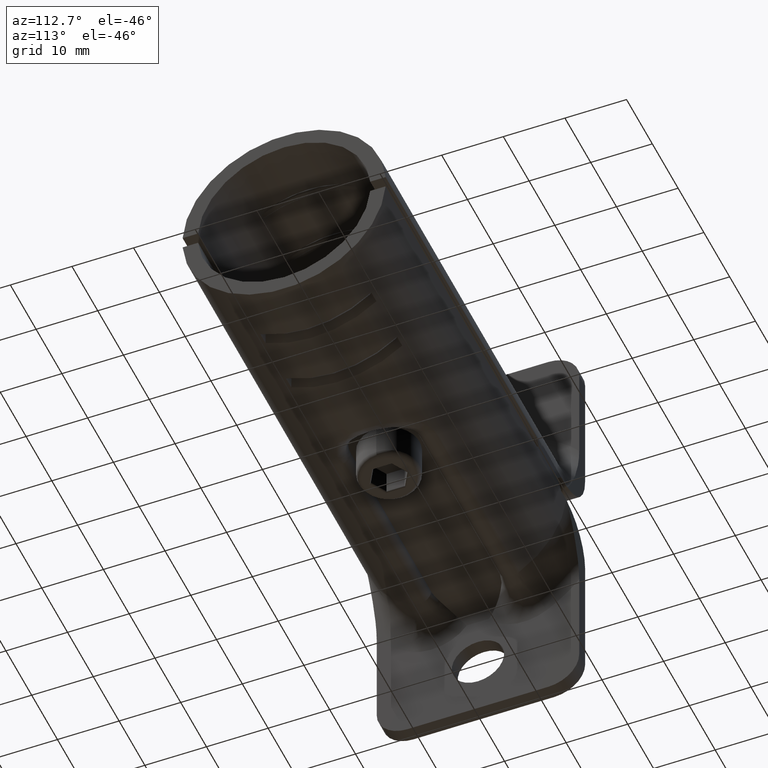
[diagram: clean part render]
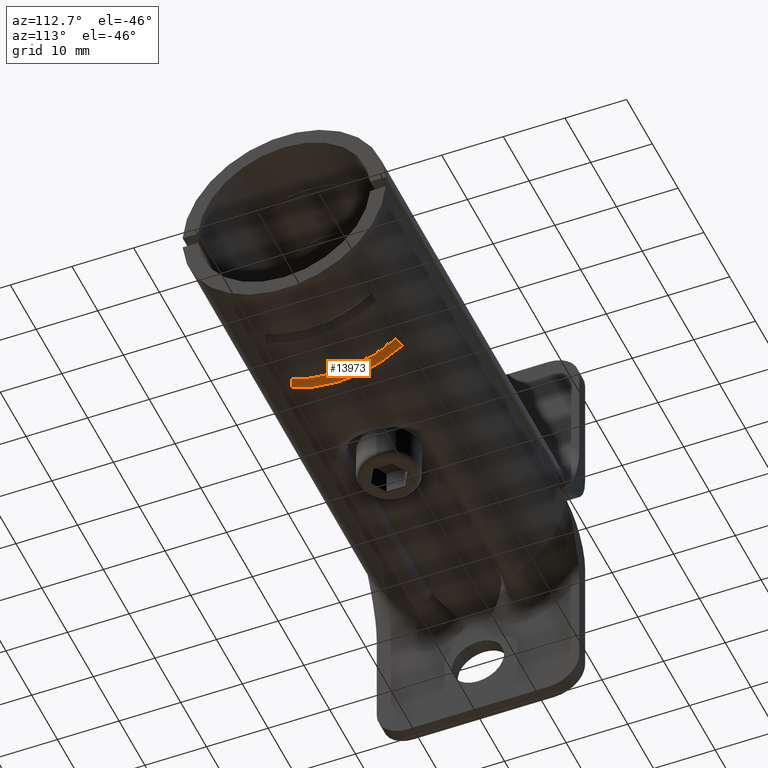
[diagram: same view with one face highlighted and labeled with its STEP entity id]
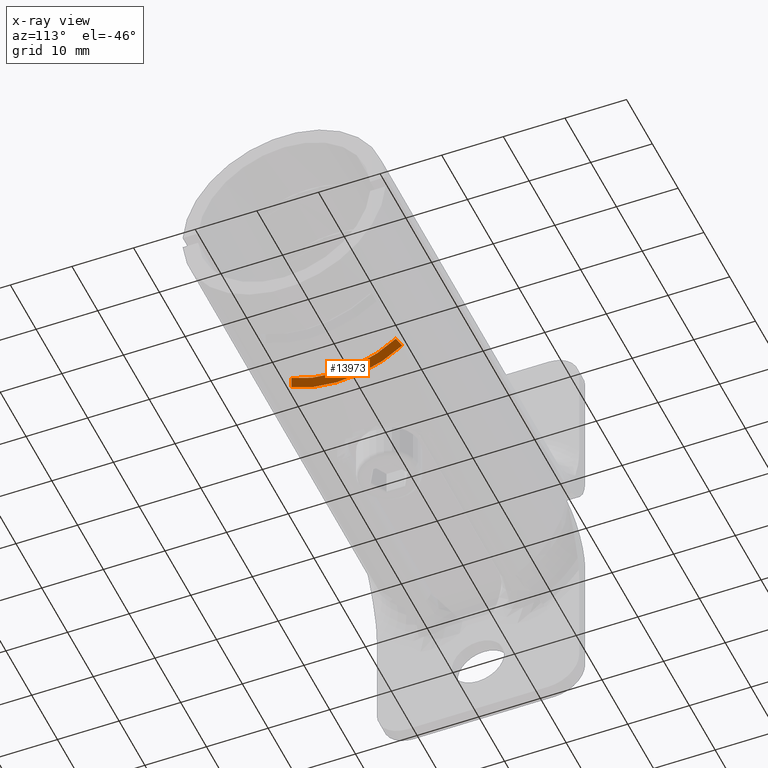
[diagram: x-ray of the same camera — body ghosted, the highlighted face saturated]
A machine part, auxiliary view. The second image highlights one B-rep face of the part: STEP entity #13973.
The next image is the same camera in x-ray: the body ghosted, the highlighted face saturated — about 0% of this face is hidden behind the body in this view.
In plain terms, the highlighted conical surface has half-angle 44.421 deg.
Its self-contained STEP definition (entity closure, byte-faithful):
#318 = AXIS2_PLACEMENT_3D ( 'NONE', #13954, #6123, #19121 ) ;
#547 = EDGE_CURVE ( 'NONE', #14338, #4493, #17700, .T. ) ;
#1475 = EDGE_CURVE ( 'NONE', #13741, #4493, #18704, .T. ) ;
#1519 = EDGE_CURVE ( 'NONE', #19907, #14338, #20794, .T. ) ;
#1596 = EDGE_CURVE ( 'NONE', #19907, #13741, #9678, .T. ) ;
#4046 = CARTESIAN_POINT ( 'NONE',  ( 45.50000000000000000, -7.167843043439999562, -13.76562479891999935 ) ) ;
#4192 = DIRECTION ( 'NONE',  ( 0.7142128391425019984, -0.4402995475573014406, 0.5440922061791019226 ) ) ;
#4317 = DIRECTION ( 'NONE',  ( -1.000000000000000000, 0.000000000000000000, 0.000000000000000000 ) ) ;
#4493 = VERTEX_POINT ( 'NONE', #4046 ) ;
#5172 = CARTESIAN_POINT ( 'NONE',  ( 44.50000000000000000, -7.620451689224000624, -14.63484595245999920 ) ) ;
#5306 = AXIS2_PLACEMENT_3D ( 'NONE', #19592, #4317, #12783 ) ;
#6123 = DIRECTION ( 'NONE',  ( -1.000000000000000000, 0.000000000000000000, 0.000000000000000000 ) ) ;
#6348 = FACE_OUTER_BOUND ( 'NONE', #21553, .T. ) ;
#8254 = AXIS2_PLACEMENT_3D ( 'NONE', #17183, #10725, #17636 ) ;
#9511 = ORIENTED_EDGE ( 'NONE', *, *, #1519, .T. ) ;
#9678 = CIRCLE ( 'NONE', #318, 16.50000000000001066 ) ;
#10585 = ORIENTED_EDGE ( 'NONE', *, *, #1475, .F. ) ;
#10677 = CARTESIAN_POINT ( 'NONE',  ( 45.50000000000000000, 9.763066047468999642, -12.06453237191000127 ) ) ;
#10712 = VECTOR ( 'NONE', #4192, 1000.000000000000114 ) ;
#10725 = DIRECTION ( 'NONE',  ( -1.000000000000000000, 0.000000000000000000, 0.000000000000000000 ) ) ;
#11582 = CONICAL_SURFACE ( 'NONE', #5306, 16.01000000000000867, 0.7752974968119411558 ) ;
#12783 = DIRECTION ( 'NONE',  ( 0.000000000000000000, -0.6290635339863875908, 0.7773538899423845239 ) ) ;
#13741 = VERTEX_POINT ( 'NONE', #5172 ) ;
#13751 = CARTESIAN_POINT ( 'NONE',  ( 44.50000000000000000, -7.620451689224000624, -14.63484595245999920 ) ) ;
#13954 = CARTESIAN_POINT ( 'NONE',  ( 44.50000000000000000, 0.000000000000000000, 0.000000000000000000 ) ) ;
#13973 = ADVANCED_FACE ( 'NONE', ( #6348 ), #11582, .T. ) ;
#14338 = VERTEX_POINT ( 'NONE', #10677 ) ;
#15547 = ORIENTED_EDGE ( 'NONE', *, *, #547, .T. ) ;
#15957 = CARTESIAN_POINT ( 'NONE',  ( 44.50000000000000000, 10.37954831077999884, -12.82633918404999918 ) ) ;
#17183 = CARTESIAN_POINT ( 'NONE',  ( 45.50000000000000000, 0.000000000000000000, 0.000000000000000000 ) ) ;
#17636 = DIRECTION ( 'NONE',  ( 0.000000000000000000, 0.6290635339863877018, -0.7773538899423845239 ) ) ;
#17700 = CIRCLE ( 'NONE', #8254, 15.52000000000000846 ) ;
#18333 = CARTESIAN_POINT ( 'NONE',  ( 44.50000000000000000, 10.37954831077999884, -12.82633918404999918 ) ) ;
#18608 = ORIENTED_EDGE ( 'NONE', *, *, #1596, .F. ) ;
#18704 = LINE ( 'NONE', #13751, #19480 ) ;
#18808 = DIRECTION ( 'NONE',  ( 0.7142128391425089928, 0.3232589059260039810, 0.6208089079125069798 ) ) ;
#19121 = DIRECTION ( 'NONE',  ( 0.000000000000000000, 0.6290635339863875908, -0.7773538899423845239 ) ) ;
#19480 = VECTOR ( 'NONE', #18808, 1000.000000000000000 ) ;
#19592 = CARTESIAN_POINT ( 'NONE',  ( 45.00000000000000000, 0.000000000000000000, 0.000000000000000000 ) ) ;
#19907 = VERTEX_POINT ( 'NONE', #18333 ) ;
#20794 = LINE ( 'NONE', #15957, #10712 ) ;
#21553 = EDGE_LOOP ( 'NONE', ( #9511, #15547, #10585, #18608 ) ) ;